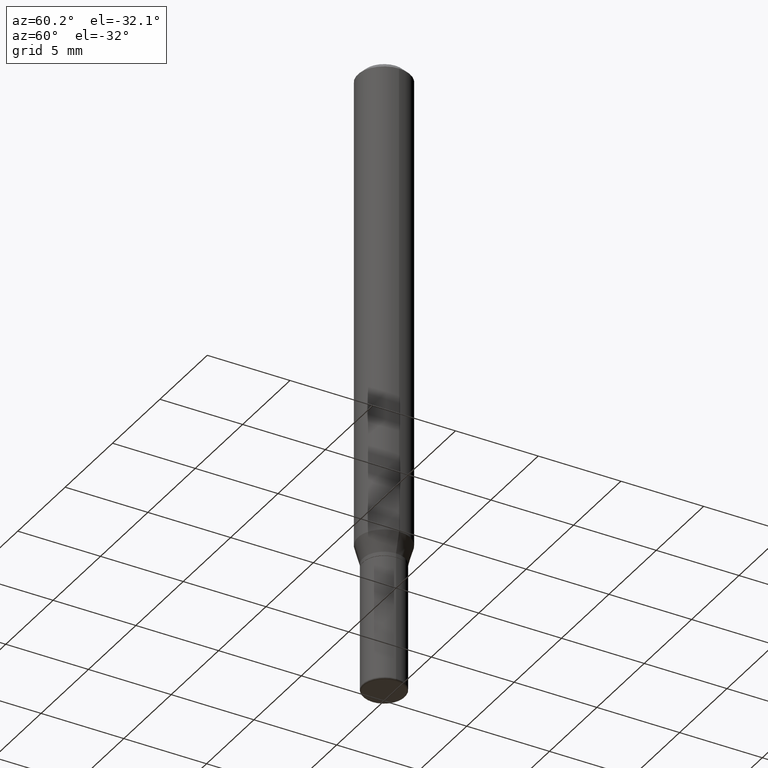
[diagram: clean part render]
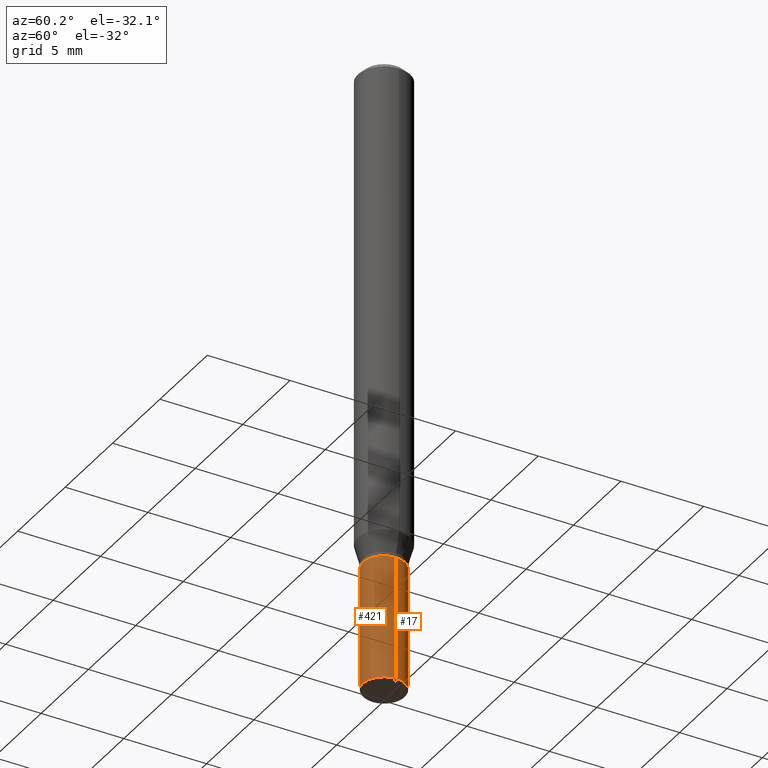
[diagram: same view with one multi-face feature highlighted, each face labeled with its STEP entity id]
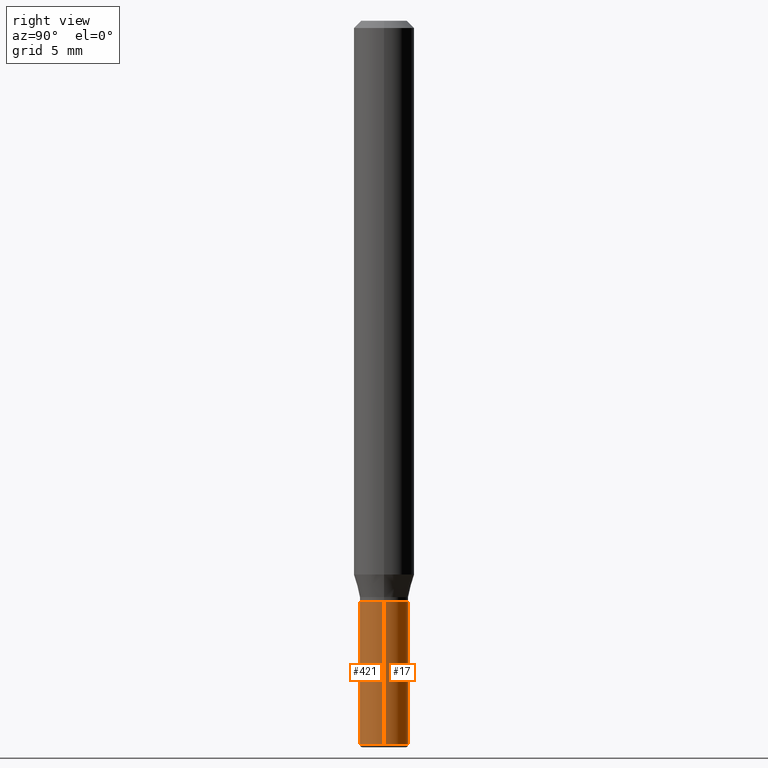
[diagram: same view with one multi-face feature highlighted, each face labeled with its STEP entity id]
A machine part, auxiliary view. The highlighted faces form ONE feature: a constant-radius fillet chain: 2 tangent blend faces with common blend radius 1.27 mm. The faces share edges in the B-rep.
A second angle (right view) of the same feature is appended — it is thin or edge-on in the first view.
Their STEP definitions:
[1] entity #17 (Cylinder):
#1 = VECTOR ( 'NONE', #136, 39.37007874015748143 ) ;
#10 = ORIENTED_EDGE ( 'NONE', *, *, #234, .T. ) ;
#17 = ADVANCED_FACE ( 'NONE', ( #316 ), #474, .T. ) ;
#20 = DIRECTION ( 'NONE',  ( -2.445468806185136597E-29, 3.491481338843145583E-15, 1.000000000000000000 ) ) ;
#28 = EDGE_CURVE ( 'NONE', #367, #415, #236, .T. ) ;
#31 = AXIS2_PLACEMENT_3D ( 'NONE', #191, #116, #80 ) ;
#58 = CARTESIAN_POINT ( 'NONE',  ( 0.04999999999999996114, -3.491481338843130397E-16, 2.438088387897966145E-30 ) ) ;
#75 = CARTESIAN_POINT ( 'NONE',  ( 2.934562567422164701E-29, -4.189777606611775804E-15, -1.200000000000000178 ) ) ;
#80 = DIRECTION ( 'NONE',  ( 1.000000000000000000, -6.982962677686266711E-15, 0.000000000000000000 ) ) ;
#102 = DIRECTION ( 'NONE',  ( -2.445468806185136877E-29, 3.491481338843145188E-15, 1.000000000000000000 ) ) ;
#106 = CARTESIAN_POINT ( 'NONE',  ( 0.000000000000000000, 0.000000000000000000, 0.000000000000000000 ) ) ;
#116 = DIRECTION ( 'NONE',  ( -2.445468806185136597E-29, 3.491481338843145583E-15, 1.000000000000000000 ) ) ;
#136 = DIRECTION ( 'NONE',  ( -2.445468806185136877E-29, 3.491481338843145188E-15, 1.000000000000000000 ) ) ;
#156 = DIRECTION ( 'NONE',  ( -2.445468806185136597E-29, 3.491481338843145583E-15, 1.000000000000000000 ) ) ;
#167 = CARTESIAN_POINT ( 'NONE',  ( -0.04999999999999991257, -4.349499736211090247E-15, -1.495000000000000329 ) ) ;
#186 = DIRECTION ( 'NONE',  ( 1.000000000000000000, -6.982962677686265922E-15, 4.876176775795936353E-29 ) ) ;
#191 = CARTESIAN_POINT ( 'NONE',  ( 3.655975865246779683E-29, -5.219764601570503930E-15, -1.495000000000000329 ) ) ;
#206 = DIRECTION ( 'NONE',  ( 1.000000000000000000, -6.982962677686274599E-15, 0.000000000000000000 ) ) ;
#210 = ORIENTED_EDGE ( 'NONE', *, *, #263, .F. ) ;
#220 = CIRCLE ( 'NONE', #31, 0.04999999999999991257 ) ;
#228 = LINE ( 'NONE', #417, #1 ) ;
#232 = LINE ( 'NONE', #58, #353 ) ;
#234 = EDGE_CURVE ( 'NONE', #305, #415, #228, .T. ) ;
#236 = CIRCLE ( 'NONE', #270, 0.05000000000000000278 ) ;
#259 = EDGE_LOOP ( 'NONE', ( #457, #10, #374, #210 ) ) ;
#263 = EDGE_CURVE ( 'NONE', #351, #367, #232, .T. ) ;
#270 = AXIS2_PLACEMENT_3D ( 'NONE', #75, #156, #206 ) ;
#295 = AXIS2_PLACEMENT_3D ( 'NONE', #106, #20, #186 ) ;
#305 = VERTEX_POINT ( 'NONE', #167 ) ;
#316 = FACE_OUTER_BOUND ( 'NONE', #259, .T. ) ;
#351 = VERTEX_POINT ( 'NONE', #409 ) ;
#353 = VECTOR ( 'NONE', #102, 39.37007874015748143 ) ;
#367 = VERTEX_POINT ( 'NONE', #480 ) ;
#371 = EDGE_CURVE ( 'NONE', #351, #305, #220, .T. ) ;
#374 = ORIENTED_EDGE ( 'NONE', *, *, #28, .F. ) ;
#409 = CARTESIAN_POINT ( 'NONE',  ( 0.04999999999999991257, -5.568912735454817265E-15, -1.495000000000000329 ) ) ;
#415 = VERTEX_POINT ( 'NONE', #431 ) ;
#417 = CARTESIAN_POINT ( 'NONE',  ( -0.04999999999999996114, 3.552713678800498168E-16, -2.459467545127451209E-30 ) ) ;
#431 = CARTESIAN_POINT ( 'NONE',  ( -0.05000000000000000278, -4.349499736211089458E-15, -1.200000000000000178 ) ) ;
#457 = ORIENTED_EDGE ( 'NONE', *, *, #371, .T. ) ;
#474 = CYLINDRICAL_SURFACE ( 'NONE', #295, 0.04999999999999996114 ) ;
#480 = CARTESIAN_POINT ( 'NONE',  ( 0.05000000000000000278, -4.538925740496089139E-15, -1.200000000000000178 ) ) ;
[2] entity #421 (Cylinder):
#1 = VECTOR ( 'NONE', #136, 39.37007874015748143 ) ;
#19 = AXIS2_PLACEMENT_3D ( 'NONE', #380, #343, #504 ) ;
#27 = CARTESIAN_POINT ( 'NONE',  ( 3.655975865246779683E-29, -5.219764601570503930E-15, -1.495000000000000329 ) ) ;
#35 = CARTESIAN_POINT ( 'NONE',  ( 0.000000000000000000, 0.000000000000000000, 0.000000000000000000 ) ) ;
#53 = AXIS2_PLACEMENT_3D ( 'NONE', #27, #334, #181 ) ;
#58 = CARTESIAN_POINT ( 'NONE',  ( 0.04999999999999996114, -3.491481338843130397E-16, 2.438088387897966145E-30 ) ) ;
#69 = CIRCLE ( 'NONE', #53, 0.04999999999999991257 ) ;
#96 = ORIENTED_EDGE ( 'NONE', *, *, #140, .T. ) ;
#102 = DIRECTION ( 'NONE',  ( -2.445468806185136877E-29, 3.491481338843145188E-15, 1.000000000000000000 ) ) ;
#107 = ORIENTED_EDGE ( 'NONE', *, *, #263, .T. ) ;
#109 = CIRCLE ( 'NONE', #19, 0.05000000000000000278 ) ;
#118 = DIRECTION ( 'NONE',  ( 1.000000000000000000, -6.982962677686265922E-15, 4.876176775795936353E-29 ) ) ;
#136 = DIRECTION ( 'NONE',  ( -2.445468806185136877E-29, 3.491481338843145188E-15, 1.000000000000000000 ) ) ;
#140 = EDGE_CURVE ( 'NONE', #305, #351, #69, .T. ) ;
#167 = CARTESIAN_POINT ( 'NONE',  ( -0.04999999999999991257, -4.349499736211090247E-15, -1.495000000000000329 ) ) ;
#173 = ORIENTED_EDGE ( 'NONE', *, *, #280, .F. ) ;
#181 = DIRECTION ( 'NONE',  ( 1.000000000000000000, -6.982962677686266711E-15, 0.000000000000000000 ) ) ;
#228 = LINE ( 'NONE', #417, #1 ) ;
#232 = LINE ( 'NONE', #58, #353 ) ;
#234 = EDGE_CURVE ( 'NONE', #305, #415, #228, .T. ) ;
#263 = EDGE_CURVE ( 'NONE', #351, #367, #232, .T. ) ;
#271 = EDGE_LOOP ( 'NONE', ( #468, #96, #107, #173 ) ) ;
#276 = FACE_OUTER_BOUND ( 'NONE', #271, .T. ) ;
#280 = EDGE_CURVE ( 'NONE', #415, #367, #109, .T. ) ;
#305 = VERTEX_POINT ( 'NONE', #167 ) ;
#314 = DIRECTION ( 'NONE',  ( -2.445468806185136597E-29, 3.491481338843145583E-15, 1.000000000000000000 ) ) ;
#334 = DIRECTION ( 'NONE',  ( -2.445468806185136597E-29, 3.491481338843145583E-15, 1.000000000000000000 ) ) ;
#343 = DIRECTION ( 'NONE',  ( -2.445468806185136597E-29, 3.491481338843145583E-15, 1.000000000000000000 ) ) ;
#351 = VERTEX_POINT ( 'NONE', #409 ) ;
#353 = VECTOR ( 'NONE', #102, 39.37007874015748143 ) ;
#367 = VERTEX_POINT ( 'NONE', #480 ) ;
#380 = CARTESIAN_POINT ( 'NONE',  ( 2.934562567422164701E-29, -4.189777606611775804E-15, -1.200000000000000178 ) ) ;
#409 = CARTESIAN_POINT ( 'NONE',  ( 0.04999999999999991257, -5.568912735454817265E-15, -1.495000000000000329 ) ) ;
#415 = VERTEX_POINT ( 'NONE', #431 ) ;
#417 = CARTESIAN_POINT ( 'NONE',  ( -0.04999999999999996114, 3.552713678800498168E-16, -2.459467545127451209E-30 ) ) ;
#421 = ADVANCED_FACE ( 'NONE', ( #276 ), #515, .T. ) ;
#431 = CARTESIAN_POINT ( 'NONE',  ( -0.05000000000000000278, -4.349499736211089458E-15, -1.200000000000000178 ) ) ;
#468 = ORIENTED_EDGE ( 'NONE', *, *, #234, .F. ) ;
#480 = CARTESIAN_POINT ( 'NONE',  ( 0.05000000000000000278, -4.538925740496089139E-15, -1.200000000000000178 ) ) ;
#489 = AXIS2_PLACEMENT_3D ( 'NONE', #35, #314, #118 ) ;
#504 = DIRECTION ( 'NONE',  ( 1.000000000000000000, -6.982962677686274599E-15, 0.000000000000000000 ) ) ;
#515 = CYLINDRICAL_SURFACE ( 'NONE', #489, 0.04999999999999996114 ) ;